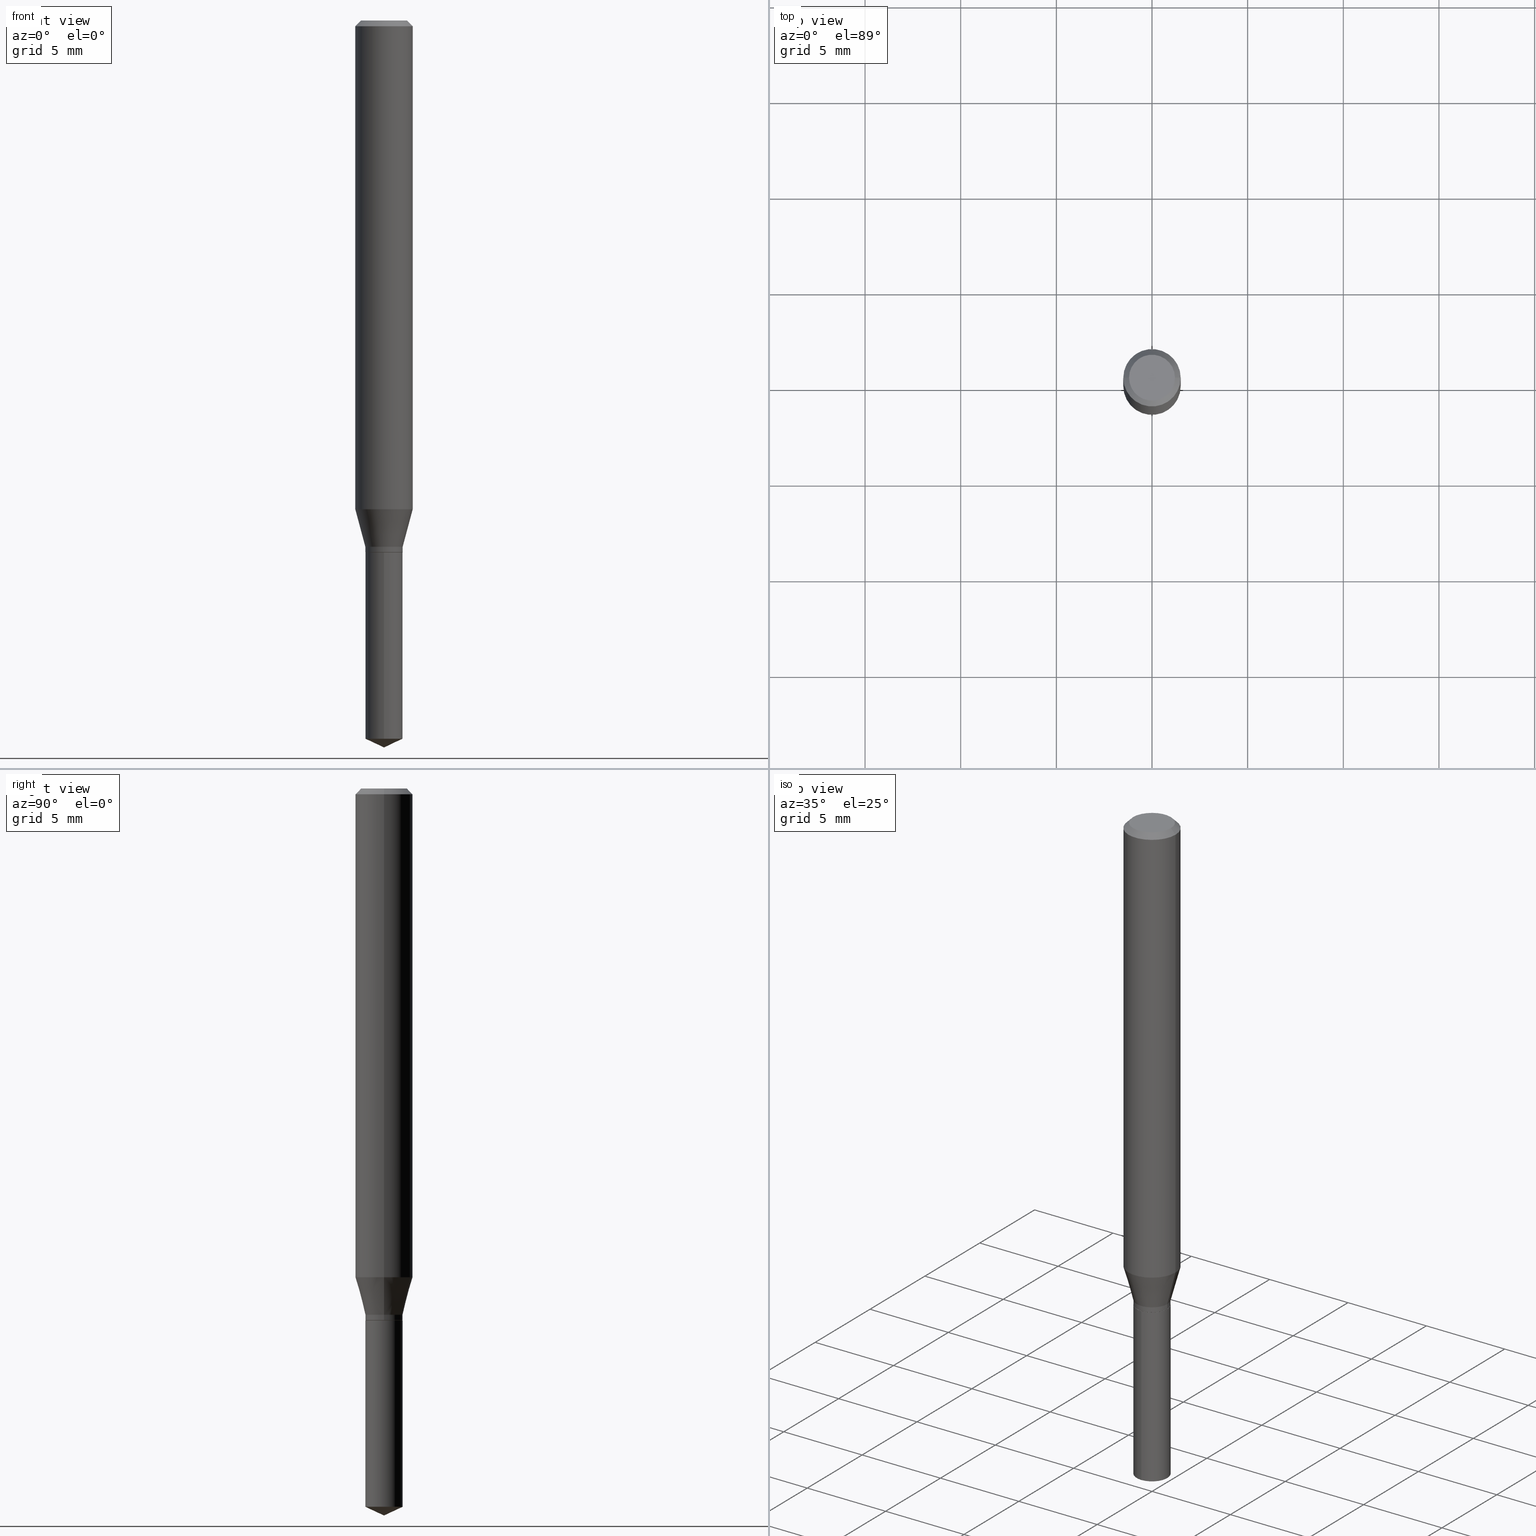
[diagram: canonical four-view strip — front | top / right | iso, engineering-drawing reading convention]
A machine part, canonical four-view strip (front | top / right | iso — engineering-drawing reading convention). The complete STEP part file that produces these views, byte-faithful:
ISO-10303-21;
HEADER;
FILE_DESCRIPTION (( 'STEP AP203' ),
    '1' );
FILE_NAME ('07938.STEP',
    '2024-04-24T06:42:45',
    ( '' ),
    ( '' ),
    'SwSTEP 2.0',
    'SolidWorks 2023',
    '' );
FILE_SCHEMA (( 'CONFIG_CONTROL_DESIGN' ));
ENDSEC;

DATA;
#1 = CARTESIAN_POINT ( 'NONE',  ( -0.05904999999999999832, -1.357140123951850551E-15, -0.01181000000000007044 ) ) ;
#2 = AXIS2_PLACEMENT_3D ( 'NONE', #396, #124, #313 ) ;
#3 = CARTESIAN_POINT ( 'NONE',  ( 0.04724000000000000421, -3.852183633974369345E-16, -3.380025165621689721E-19 ) ) ;
#4 = PRODUCT_DEFINITION_SHAPE ( 'NONE', 'NONE',  #31 ) ;
#5 = FACE_OUTER_BOUND ( 'NONE', #118, .T. ) ;
#6 = COORDINATED_UNIVERSAL_TIME_OFFSET ( 5, 0, .BEHIND. ) ;
#7 = CARTESIAN_POINT ( 'NONE',  ( 2.648442717098502966E-29, -3.781274289967126614E-15, -1.082999999999999963 ) ) ;
#8 = DIRECTION ( 'NONE',  ( -2.445458899330790108E-29, 3.491495526022433205E-15, 1.000000000000000000 ) ) ;
#9 = ADVANCED_FACE ( 'NONE', ( #312 ), #394, .T. ) ;
#10 = DIRECTION ( 'NONE',  ( -2.445468806185136597E-29, 3.491481338843145583E-15, 1.000000000000000000 ) ) ;
#11 = CARTESIAN_POINT ( 'NONE',  ( 8.265746106709734507E-48, -1.180129479067563789E-33, -3.380025165646692144E-19 ) ) ;
#12 = DIRECTION ( 'NONE',  ( 1.000000000000000000, -6.982962677686266711E-15, 0.000000000000000000 ) ) ;
#13 = APPROVAL ( #167, 'UNSPECIFIED' ) ;
#14 = DIRECTION ( 'NONE',  ( -2.445468806185136597E-29, 3.491481338843145583E-15, 1.000000000000000000 ) ) ;
#15 = APPLICATION_PROTOCOL_DEFINITION ( 'international standard', 'config_control_design', 1994, #27 ) ;
#16 = CARTESIAN_POINT ( 'NONE',  ( 0.03840000000000000357, -4.087826351517553684E-15, -1.093999999999999861 ) ) ;
#17 = ORIENTED_EDGE ( 'NONE', *, *, #346, .T. ) ;
#18 = FACE_OUTER_BOUND ( 'NONE', #222, .T. ) ;
#19 = CIRCLE ( 'NONE', #302, 0.05904999999999999832 ) ;
#20 = CARTESIAN_POINT ( 'NONE',  ( -0.03840000000000000357, -3.508425879435247821E-15, -1.082999999999999963 ) ) ;
#21 = DIRECTION ( 'NONE',  ( -1.000000000000000000, 6.982962677686266711E-15, 0.000000000000000000 ) ) ;
#22 = PERSON_AND_ORGANIZATION ( #65, #225 ) ;
#23 = DIRECTION ( 'NONE',  ( 1.000000000000000000, -6.982962677686265133E-15, 0.000000000000000000 ) ) ;
#24 = VERTEX_POINT ( 'NONE', #88 ) ;
#25 = CARTESIAN_POINT ( 'NONE',  ( -9.261924752013118283E-28, 1.322368428517963298E-13, 37.87397874015748300 ) ) ;
#26 = ORIENTED_EDGE ( 'NONE', *, *, #338, .F. ) ;
#27 = APPLICATION_CONTEXT ( 'configuration controlled 3d designs of mechanical parts and assemblies' ) ;
#28 = ADVANCED_FACE ( 'NONE', ( #90 ), #85, .T. ) ;
#29 = LOCAL_TIME ( 2, 42, 45.00000000000000000, #163 ) ;
#30 = ORIENTED_EDGE ( 'NONE', *, *, #318, .F. ) ;
#31 = PRODUCT_DEFINITION ( 'UNKNOWN', '', #461, #354 ) ;
#32 = ORIENTED_EDGE ( 'NONE', *, *, #338, .T. ) ;
#33 = VERTEX_POINT ( 'NONE', #1 ) ;
#34 = CONICAL_SURFACE ( 'NONE', #424, 0.03789999999999999619, 0.7853981633972775267 ) ;
#35 = EDGE_LOOP ( 'NONE', ( #223, #198, #62, #193 ) ) ;
#36 = CIRCLE ( 'NONE', #43, 0.03840000000000000357 ) ;
#37 = ORIENTED_EDGE ( 'NONE', *, *, #304, .F. ) ;
#38 = PERSON_AND_ORGANIZATION_ROLE ( 'classification_officer' ) ;
#39 = CARTESIAN_POINT ( 'NONE',  ( 0.000000000000000000, 0.000000000000000000, 0.000000000000000000 ) ) ;
#40 = DIRECTION ( 'NONE',  ( -2.445468806185136597E-29, 3.491481338843145583E-15, 1.000000000000000000 ) ) ;
#41 = FACE_OUTER_BOUND ( 'NONE', #301, .T. ) ;
#42 = AXIS2_PLACEMENT_3D ( 'NONE', #96, #463, #237 ) ;
#43 = AXIS2_PLACEMENT_3D ( 'NONE', #177, #286, #450 ) ;
#44 = CC_DESIGN_PERSON_AND_ORGANIZATION_ASSIGNMENT ( #197, #268, ( #461 ) ) ;
#45 = LINE ( 'NONE', #276, #349 ) ;
#46 = APPROVAL_ROLE ( '' ) ;
#47 = DIRECTION ( 'NONE',  ( 1.000000000000000000, -6.982962677686265133E-15, 0.000000000000000000 ) ) ;
#48 = UNCERTAINTY_MEASURE_WITH_UNIT (LENGTH_MEASURE( 1.000000000000000082E-05 ), #71, 'distance_accuracy_value', 'NONE');
#49 = DIRECTION ( 'NONE',  ( -0.7071067811865453523, 2.468850131082234184E-15, -0.7071067811865496822 ) ) ;
#50 = DIRECTION ( 'NONE',  ( 1.000000000000000000, -6.982962677686264344E-15, 0.000000000000000000 ) ) ;
#51 = ADVANCED_FACE ( 'NONE', ( #169 ), #309, .T. ) ;
#52 = DIRECTION ( 'NONE',  ( -2.438088387897960049E-29, 3.491481338843145188E-15, 1.000000000000000000 ) ) ;
#53 = CARTESIAN_POINT ( 'NONE',  ( 0.03840000000000000357, -4.049420056790279028E-15, -1.082999999999999963 ) ) ;
#54 = ADVANCED_FACE ( 'NONE', ( #351 ), #387, .T. ) ;
#55 = PERSON_AND_ORGANIZATION_ROLE ( 'creator' ) ;
#56 = AXIS2_PLACEMENT_3D ( 'NONE', #58, #324, #104 ) ;
#57 = SECURITY_CLASSIFICATION ( '', '', #161 ) ;
#58 = CARTESIAN_POINT ( 'NONE',  ( 2.676565608369632355E-29, -3.821426325363822773E-15, -1.094500000000000028 ) ) ;
#59 = ORIENTED_EDGE ( 'NONE', *, *, #240, .T. ) ;
#60 = CARTESIAN_POINT ( 'NONE',  ( 2.676565608369631794E-29, -3.821426325363822773E-15, -1.094499999999999806 ) ) ;
#61 = CARTESIAN_POINT ( 'NONE',  ( -0.03840000000000000357, -3.527629026798885149E-15, -1.093999999999999861 ) ) ;
#62 = ORIENTED_EDGE ( 'NONE', *, *, #243, .T. ) ;
#63 = DIRECTION ( 'NONE',  ( -6.982962677686265133E-15, -1.000000000000000000, 3.557093741750342424E-15 ) ) ;
#64 = CARTESIAN_POINT ( 'NONE',  ( 2.728484105319146858E-16, 0.03839999999999618718, -1.094500000000000028 ) ) ;
#65 = PERSON ( 'UNSPECIFIED', 'UNSPECIFIED', 'UNSPECIFIED', ('UNSPECIFIED'), ('UNSPECIFIED'), ('UNSPECIFIED') ) ;
#66 = ORIENTED_EDGE ( 'NONE', *, *, #304, .T. ) ;
#67 = CIRCLE ( 'NONE', #278, 0.05904999999999999832 ) ;
#68 = VECTOR ( 'NONE', #275, 39.37007874015748143 ) ;
#69 = DIRECTION ( 'NONE',  ( 2.438088387897960049E-29, -3.491481338843145188E-15, -1.000000000000000000 ) ) ;
#70 = ORIENTED_EDGE ( 'NONE', *, *, #383, .F. ) ;
#71 =( CONVERSION_BASED_UNIT ( 'INCH', #409 ) LENGTH_UNIT ( ) NAMED_UNIT ( #371 ) );
#72 = ADVANCED_FACE ( 'NONE', ( #239 ), #468, .T. ) ;
#73 = ADVANCED_FACE ( 'NONE', ( #5 ), #358, .T. ) ;
#74 = CC_DESIGN_PERSON_AND_ORGANIZATION_ASSIGNMENT ( #306, #38, ( #57 ) ) ;
#75 = DATE_AND_TIME ( #111, #341 ) ;
#76 = CONICAL_SURFACE ( 'NONE', #234, 84.42940631927434936, 1.134464013796316006 ) ;
#77 = VERTEX_POINT ( 'NONE', #136 ) ;
#78 = ORIENTED_EDGE ( 'NONE', *, *, #471, .T. ) ;
#79 = ADVANCED_FACE ( 'NONE', ( #41 ), #416, .T. ) ;
#80 = ORIENTED_EDGE ( 'NONE', *, *, #164, .F. ) ;
#81 = CALENDAR_DATE ( 2024, 24, 4 ) ;
#82 = PERSON_AND_ORGANIZATION_ROLE ( 'design_supplier' ) ;
#83 = AXIS2_PLACEMENT_3D ( 'NONE', #292, #14, #23 ) ;
#84 = ORIENTED_EDGE ( 'NONE', *, *, #252, .F. ) ;
#85 = CYLINDRICAL_SURFACE ( 'NONE', #208, 0.03840000000000000357 ) ;
#86 = EDGE_CURVE ( 'NONE', #333, #339, #270, .T. ) ;
#87 = DATE_TIME_ROLE ( 'classification_date' ) ;
#88 = CARTESIAN_POINT ( 'NONE',  ( 0.05905000000000011628, -3.924540770342018857E-15, -1.005933150823702382 ) ) ;
#89 = FACE_OUTER_BOUND ( 'NONE', #440, .T. ) ;
#90 = FACE_OUTER_BOUND ( 'NONE', #481, .T. ) ;
#91 = AXIS2_PLACEMENT_3D ( 'NONE', #165, #467, #93 ) ;
#92 = CARTESIAN_POINT ( 'NONE',  ( 2.888098660104663766E-31, -4.123439461173779647E-17, -0.01181000000000007044 ) ) ;
#93 = DIRECTION ( 'NONE',  ( -6.982962677686266711E-15, -1.000000000000000000, 3.520397390770453475E-15 ) ) ;
#94 = CARTESIAN_POINT ( 'NONE',  ( -2.681457668231258890E-16, -0.03840000000000381997, -1.094499999999999806 ) ) ;
#95 = CC_DESIGN_PERSON_AND_ORGANIZATION_ASSIGNMENT ( #321, #445, ( #230 ) ) ;
#96 = CARTESIAN_POINT ( 'NONE',  ( 2.888098660104663766E-31, -4.123439461173779647E-17, -0.01181000000000007044 ) ) ;
#97 = LINE ( 'NONE', #253, #106 ) ;
#98 = ORIENTED_EDGE ( 'NONE', *, *, #372, .T. ) ;
#99 = AXIS2_PLACEMENT_3D ( 'NONE', #469, #200, #433 ) ;
#100 = LINE ( 'NONE', #331, #456 ) ;
#101 = DIRECTION ( 'NONE',  ( -2.445468806185136597E-29, 3.491481338843145583E-15, 1.000000000000000000 ) ) ;
#102 = ORIENTED_EDGE ( 'NONE', *, *, #444, .T. ) ;
#103 = DIRECTION ( 'NONE',  ( 1.000000000000000000, -6.982962677686266711E-15, 0.000000000000000000 ) ) ;
#104 = DIRECTION ( 'NONE',  ( 1.000000000000000000, -6.982962677686265133E-15, 0.000000000000000000 ) ) ;
#105 = LINE ( 'NONE', #473, #189 ) ;
#106 = VECTOR ( 'NONE', #246, 39.37007874015748143 ) ;
#107 = VECTOR ( 'NONE', #251, 39.37007874015748143 ) ;
#108 = EDGE_CURVE ( 'NONE', #265, #221, #355, .T. ) ;
#109 = CALENDAR_DATE ( 2024, 24, 4 ) ;
#110 = CARTESIAN_POINT ( 'NONE',  ( 2.459978141446892264E-29, -3.512196824224644331E-15, -1.005933150823702382 ) ) ;
#111 = CALENDAR_DATE ( 2024, 24, 4 ) ;
#112 = ORIENTED_EDGE ( 'NONE', *, *, #346, .F. ) ;
#113 = EDGE_LOOP ( 'NONE', ( #482, #184, #415, #37 ) ) ;
#114 = AXIS2_PLACEMENT_3D ( 'NONE', #391, #8, #122 ) ;
#115 = APPROVAL_PERSON_ORGANIZATION ( #22, #441, #376 ) ;
#116 = ORIENTED_EDGE ( 'NONE', *, *, #185, .F. ) ;
#117 = COORDINATED_UNIVERSAL_TIME_OFFSET ( 5, 0, .BEHIND. ) ;
#118 = EDGE_LOOP ( 'NONE', ( #112, #476, #266, #98 ) ) ;
#119 = EDGE_LOOP ( 'NONE', ( #205, #207, #317, #154 ) ) ;
#120 = CLOSED_SHELL ( 'NONE', ( #170, #489, #72, #28, #385 ) ) ;
#121 = CONICAL_SURFACE ( 'NONE', #83, 0.03789999999999999619, 0.7853981633972775267 ) ;
#122 = DIRECTION ( 'NONE',  ( -6.982962677686265133E-15, -1.000000000000000000, 3.557093741750342424E-15 ) ) ;
#123 = CONICAL_SURFACE ( 'NONE', #158, 0.05904999999999999832, 0.7853981633974452814 ) ;
#124 = DIRECTION ( 'NONE',  ( -2.445468806185136597E-29, 3.491481338843145583E-15, 1.000000000000000000 ) ) ;
#125 = DATE_AND_TIME ( #308, #29 ) ;
#126 = DIRECTION ( 'NONE',  ( -2.445468806185136597E-29, 3.491481338843145583E-15, 1.000000000000000000 ) ) ;
#127 = CC_DESIGN_PERSON_AND_ORGANIZATION_ASSIGNMENT ( #421, #82, ( #461 ) ) ;
#128 = LINE ( 'NONE', #168, #68 ) ;
#129 = ADVANCED_FACE ( 'NONE', ( #490 ), #34, .T. ) ;
#130 = CARTESIAN_POINT ( 'NONE',  ( -0.03789999999999999619, -3.552130628510744879E-15, -1.094500000000000028 ) ) ;
#131 = CYLINDRICAL_SURFACE ( 'NONE', #114, 0.03840000000000000357 ) ;
#132 = CIRCLE ( 'NONE', #388, 0.04724000000000000421 ) ;
#133 = LOCAL_TIME ( 2, 42, 45.00000000000000000, #117 ) ;
#134 = EDGE_CURVE ( 'NONE', #156, #24, #465, .T. ) ;
#135 = DIRECTION ( 'NONE',  ( 1.000000000000000000, -6.982962677686266711E-15, 0.000000000000000000 ) ) ;
#136 = CARTESIAN_POINT ( 'NONE',  ( 3.658651059288794515E-29, -5.223626456482161457E-15, -1.496099999999999985 ) ) ;
#137 = DIRECTION ( 'NONE',  ( 0.7071067811865453523, -7.319954787623248157E-15, -0.7071067811865496822 ) ) ;
#138 = DIRECTION ( 'NONE',  ( -0.2588190451025211836, 5.211531920934547886E-15, 0.9659258262890679791 ) ) ;
#139 = DIRECTION ( 'NONE',  ( 0.000000000000000000, 0.000000000000000000, 1.000000000000000000 ) ) ;
#140 = DIRECTION ( 'NONE',  ( 1.000000000000000000, -6.982962677686266711E-15, 4.876185090822587894E-29 ) ) ;
#141 = VECTOR ( 'NONE', #402, 39.37007874015748143 ) ;
#142 = DIRECTION ( 'NONE',  ( -2.445458899330790108E-29, 3.491495526022433205E-15, 1.000000000000000000 ) ) ;
#143 = DIRECTION ( 'NONE',  ( -2.445468806185136877E-29, 3.491481338843145188E-15, 1.000000000000000000 ) ) ;
#144 = ORIENTED_EDGE ( 'NONE', *, *, #448, .F. ) ;
#145 =( LENGTH_UNIT ( ) NAMED_UNIT ( * ) SI_UNIT ( $, .METRE. ) );
#146 = DATE_TIME_ROLE ( 'creation_date' ) ;
#147 = DIRECTION ( 'NONE',  ( -6.982962677686265133E-15, -1.000000000000000000, 3.557093741750342424E-15 ) ) ;
#148 = EDGE_LOOP ( 'NONE', ( #300, #484, #153, #84 ) ) ;
#149 = EDGE_CURVE ( 'NONE', #284, #33, #128, .T. ) ;
#150 = PRODUCT_RELATED_PRODUCT_CATEGORY ( 'detail', '', ( #230 ) ) ;
#151 = VECTOR ( 'NONE', #143, 39.37007874015748143 ) ;
#152 =( GEOMETRIC_REPRESENTATION_CONTEXT ( 3 ) GLOBAL_UNCERTAINTY_ASSIGNED_CONTEXT ( ( #48 ) ) GLOBAL_UNIT_ASSIGNED_CONTEXT ( ( #71, #293, #411 ) ) REPRESENTATION_CONTEXT ( 'NONE', 'WORKASPACE' ) );
#153 = ORIENTED_EDGE ( 'NONE', *, *, #356, .F. ) ;
#154 = ORIENTED_EDGE ( 'NONE', *, *, #134, .F. ) ;
#155 = PERSON_AND_ORGANIZATION ( #65, #225 ) ;
#156 = VERTEX_POINT ( 'NONE', #53 ) ;
#157 = CIRCLE ( 'NONE', #179, 0.03840000000000000357 ) ;
#158 = AXIS2_PLACEMENT_3D ( 'NONE', #398, #258, #21 ) ;
#159 = EDGE_LOOP ( 'NONE', ( #80, #451, #400 ) ) ;
#160 = ORIENTED_EDGE ( 'NONE', *, *, #108, .T. ) ;
#161 = SECURITY_CLASSIFICATION_LEVEL ( 'unclassified' ) ;
#162 = DIRECTION ( 'NONE',  ( -2.445468806185136597E-29, 3.491481338843145583E-15, 1.000000000000000000 ) ) ;
#163 = COORDINATED_UNIVERSAL_TIME_OFFSET ( 5, 0, .BEHIND. ) ;
#164 = EDGE_CURVE ( 'NONE', #77, #265, #429, .T. ) ;
#165 = CARTESIAN_POINT ( 'NONE',  ( -9.261924752013118283E-28, 1.322368428517963298E-13, 37.87397874015748300 ) ) ;
#166 = CARTESIAN_POINT ( 'NONE',  ( 0.03789999999999999619, -4.086080610848132181E-15, -1.094500000000000028 ) ) ;
#167 = APPROVAL_STATUS ( 'not_yet_approved' ) ;
#168 = CARTESIAN_POINT ( 'NONE',  ( -0.05905000000000006077, 4.195754854663395916E-16, -2.904631170795524694E-30 ) ) ;
#169 = FACE_OUTER_BOUND ( 'NONE', #113, .T. ) ;
#170 = ADVANCED_FACE ( 'NONE', ( #314 ), #131, .T. ) ;
#171 = DIRECTION ( 'NONE',  ( -2.445458899330790108E-29, 3.491495526022433205E-15, 1.000000000000000000 ) ) ;
#172 = AXIS2_PLACEMENT_3D ( 'NONE', #274, #357, #310 ) ;
#173 = AXIS2_PLACEMENT_3D ( 'NONE', #392, #52, #206 ) ;
#174 = LINE ( 'NONE', #210, #151 ) ;
#175 = DATE_AND_TIME ( #236, #264 ) ;
#176 = DIRECTION ( 'NONE',  ( -2.445468806185136597E-29, 3.491481338843145583E-15, 1.000000000000000000 ) ) ;
#177 = CARTESIAN_POINT ( 'NONE',  ( 3.614872991782365897E-29, -5.161091462290022333E-15, -1.478193785926848136 ) ) ;
#178 = FACE_OUTER_BOUND ( 'NONE', #326, .T. ) ;
#179 = AXIS2_PLACEMENT_3D ( 'NONE', #329, #478, #147 ) ;
#180 = AXIS2_PLACEMENT_3D ( 'NONE', #60, #142, #63 ) ;
#181 = DIRECTION ( 'NONE',  ( -2.445468806185136597E-29, 3.491481338843145583E-15, 1.000000000000000000 ) ) ;
#182 = LINE ( 'NONE', #366, #107 ) ;
#183 = APPROVAL_STATUS ( 'not_yet_approved' ) ;
#184 = ORIENTED_EDGE ( 'NONE', *, *, #86, .T. ) ;
#185 = EDGE_CURVE ( 'NONE', #382, #342, #277, .T. ) ;
#186 = DIRECTION ( 'NONE',  ( -2.445458899330790108E-29, 3.491495526022433205E-15, 1.000000000000000000 ) ) ;
#187 = ORIENTED_EDGE ( 'NONE', *, *, #422, .F. ) ;
#188 = CIRCLE ( 'NONE', #244, 0.03840000000000000357 ) ;
#189 = VECTOR ( 'NONE', #323, 39.37007874015748143 ) ;
#190 = EDGE_LOOP ( 'NONE', ( #458, #337, #374, #247 ) ) ;
#191 = VERTEX_POINT ( 'NONE', #287 ) ;
#192 = CC_DESIGN_PERSON_AND_ORGANIZATION_ASSIGNMENT ( #255, #55, ( #31 ) ) ;
#193 = ORIENTED_EDGE ( 'NONE', *, *, #372, .F. ) ;
#194 = CIRCLE ( 'NONE', #180, 0.03840000000000000357 ) ;
#195 = ORIENTED_EDGE ( 'NONE', *, *, #353, .F. ) ;
#196 = ADVANCED_FACE ( 'NONE', ( #438 ), #121, .T. ) ;
#197 = PERSON_AND_ORGANIZATION ( #65, #225 ) ;
#198 = ORIENTED_EDGE ( 'NONE', *, *, #448, .T. ) ;
#199 = CC_DESIGN_DATE_AND_TIME_ASSIGNMENT ( #125, #87, ( #57 ) ) ;
#200 = DIRECTION ( 'NONE',  ( -2.445468806185136597E-29, 3.491481338843145583E-15, 1.000000000000000000 ) ) ;
#201 = DIRECTION ( 'NONE',  ( 1.000000000000000000, -6.982962677686264344E-15, 0.000000000000000000 ) ) ;
#202 = ADVANCED_BREP_SHAPE_REPRESENTATION ( '07938', ( #361, #362, #395 ), #152 ) ;
#203 = CC_DESIGN_SECURITY_CLASSIFICATION ( #57, ( #461 ) ) ;
#204 = DIRECTION ( 'NONE',  ( 6.439704144417030353E-15, 0.9063077870366521571, 0.4226182617406946673 ) ) ;
#205 = ORIENTED_EDGE ( 'NONE', *, *, #356, .T. ) ;
#206 = DIRECTION ( 'NONE',  ( 1.000000000000000000, -6.982962677686265922E-15, 4.876176775795935793E-29 ) ) ;
#207 = ORIENTED_EDGE ( 'NONE', *, *, #318, .T. ) ;
#208 = AXIS2_PLACEMENT_3D ( 'NONE', #459, #171, #231 ) ;
#209 = APPROVAL_PERSON_ORGANIZATION ( #155, #13, #46 ) ;
#210 = CARTESIAN_POINT ( 'NONE',  ( 0.05905000000000006077, -4.123439461173744764E-16, 2.879382386107503023E-30 ) ) ;
#211 = DIRECTION ( 'NONE',  ( -2.445458899330790108E-29, 3.491495526022433205E-15, 1.000000000000000000 ) ) ;
#212 = ORIENTED_EDGE ( 'NONE', *, *, #422, .T. ) ;
#213 = CARTESIAN_POINT ( 'NONE',  ( 3.614872991782365897E-29, -5.161091462290022333E-15, -1.478193785926848136 ) ) ;
#214 = CIRCLE ( 'NONE', #486, 0.03840000000000000357 ) ;
#215 = APPROVAL_PERSON_ORGANIZATION ( #299, #410, #413 ) ;
#216 = CARTESIAN_POINT ( 'NONE',  ( 0.000000000000000000, 0.000000000000000000, 0.000000000000000000 ) ) ;
#217 = FACE_OUTER_BOUND ( 'NONE', #148, .T. ) ;
#218 = CARTESIAN_POINT ( 'NONE',  ( -0.03840000000000000357, -3.527629026798885149E-15, -1.082999999999999963 ) ) ;
#219 = ORIENTED_EDGE ( 'NONE', *, *, #134, .T. ) ;
#220 = VECTOR ( 'NONE', #138, 39.37007874015748854 ) ;
#221 = VERTEX_POINT ( 'NONE', #64 ) ;
#222 = EDGE_LOOP ( 'NONE', ( #453, #330, #187 ) ) ;
#223 = ORIENTED_EDGE ( 'NONE', *, *, #149, .F. ) ;
#224 = AXIS2_PLACEMENT_3D ( 'NONE', #431, #272, #393 ) ;
#225 = ORGANIZATION ( 'UNSPECIFIED', 'UNSPECIFIED', '' ) ;
#226 = EDGE_CURVE ( 'NONE', #336, #379, #132, .T. ) ;
#227 = ORIENTED_EDGE ( 'NONE', *, *, #185, .T. ) ;
#228 = CARTESIAN_POINT ( 'NONE',  ( 0.03840000000000000357, -4.049420056790279028E-15, -1.082999999999999963 ) ) ;
#229 = DIRECTION ( 'NONE',  ( -2.445468806185136597E-29, 3.491481338843145583E-15, 1.000000000000000000 ) ) ;
#230 = PRODUCT ( '07938', '07938', '', ( #328 ) ) ;
#231 = DIRECTION ( 'NONE',  ( -6.982962677686265133E-15, -1.000000000000000000, 3.557093741750342424E-15 ) ) ;
#232 = DIRECTION ( 'NONE',  ( 2.445458899330789267E-29, -3.491495526022433599E-15, -1.000000000000000000 ) ) ;
#233 = DIRECTION ( 'NONE',  ( -2.445468806185136597E-29, 3.491481338843145583E-15, 1.000000000000000000 ) ) ;
#234 = AXIS2_PLACEMENT_3D ( 'NONE', #25, #186, #332 ) ;
#235 = CARTESIAN_POINT ( 'NONE',  ( 2.648442717098502966E-29, -3.781274289967126614E-15, -1.082999999999999963 ) ) ;
#236 = CALENDAR_DATE ( 2024, 24, 4 ) ;
#237 = DIRECTION ( 'NONE',  ( -1.000000000000000000, 6.982962677686266711E-15, 0.000000000000000000 ) ) ;
#238 = PLANE ( 'NONE',  #173 ) ;
#239 = FACE_OUTER_BOUND ( 'NONE', #159, .T. ) ;
#240 = EDGE_CURVE ( 'NONE', #379, #336, #316, .T. ) ;
#241 = LINE ( 'NONE', #315, #455 ) ;
#242 = CARTESIAN_POINT ( 'NONE',  ( 2.648442717098502966E-29, -3.781274289967126614E-15, -1.082999999999999963 ) ) ;
#243 = EDGE_CURVE ( 'NONE', #24, #191, #174, .T. ) ;
#244 = AXIS2_PLACEMENT_3D ( 'NONE', #213, #211, #365 ) ;
#245 = ORIENTED_EDGE ( 'NONE', *, *, #243, .F. ) ;
#246 = DIRECTION ( 'NONE',  ( -2.445468806185136877E-29, 3.491481338843145188E-15, 1.000000000000000000 ) ) ;
#247 = ORIENTED_EDGE ( 'NONE', *, *, #86, .F. ) ;
#248 = APPLICATION_CONTEXT ( 'configuration controlled 3d designs of mechanical parts and assemblies' ) ;
#249 = CARTESIAN_POINT ( 'NONE',  ( -2.681457668231258890E-16, -0.03840000000000381997, -1.094499999999999806 ) ) ;
#250 = DIRECTION ( 'NONE',  ( 1.000000000000000000, -6.982962677686266711E-15, 4.876185090822587894E-29 ) ) ;
#251 = DIRECTION ( 'NONE',  ( 0.7071067811864267805, -2.468850131080992517E-15, 0.7071067811866682540 ) ) ;
#252 = EDGE_CURVE ( 'NONE', #339, #156, #97, .T. ) ;
#253 = CARTESIAN_POINT ( 'NONE',  ( 0.03840000000000000357, -2.681457668231526610E-16, 1.872451881905639538E-30 ) ) ;
#254 = AXIS2_PLACEMENT_3D ( 'NONE', #7, #233, #428 ) ;
#255 = PERSON_AND_ORGANIZATION ( #65, #225 ) ;
#256 = AXIS2_PLACEMENT_3D ( 'NONE', #464, #232, #319 ) ;
#257 = DIRECTION ( 'NONE',  ( -2.445468806185136877E-29, 3.491481338843145188E-15, 1.000000000000000000 ) ) ;
#258 = DIRECTION ( 'NONE',  ( 2.445468806185136597E-29, -3.491481338843145583E-15, -1.000000000000000000 ) ) ;
#259 = APPROVAL_DATE_TIME ( #175, #13 ) ;
#260 = APPROVAL_DATE_TIME ( #262, #441 ) ;
#261 = ORIENTED_EDGE ( 'NONE', *, *, #108, .F. ) ;
#262 = DATE_AND_TIME ( #109, #297 ) ;
#263 = ORIENTED_EDGE ( 'NONE', *, *, #479, .T. ) ;
#264 = LOCAL_TIME ( 2, 42, 45.00000000000000000, #6 ) ;
#265 = VERTEX_POINT ( 'NONE', #474 ) ;
#266 = ORIENTED_EDGE ( 'NONE', *, *, #401, .T. ) ;
#267 = ADVANCED_FACE ( 'NONE', ( #178 ), #407, .F. ) ;
#268 = PERSON_AND_ORGANIZATION_ROLE ( 'creator' ) ;
#269 = ORIENTED_EDGE ( 'NONE', *, *, #427, .F. ) ;
#270 = CIRCLE ( 'NONE', #99, 0.03840000000000000357 ) ;
#271 = CIRCLE ( 'NONE', #417, 0.05905000000000011628 ) ;
#272 = DIRECTION ( 'NONE',  ( -2.445468806185136597E-29, 3.491481338843145583E-15, 1.000000000000000000 ) ) ;
#273 = DIRECTION ( 'NONE',  ( 0.2588190451025211836, 1.565188264969622559E-15, 0.9659258262890679791 ) ) ;
#274 = CARTESIAN_POINT ( 'NONE',  ( 2.675342873966538993E-29, -3.819680584694400481E-15, -1.093999999999999861 ) ) ;
#275 = DIRECTION ( 'NONE',  ( -2.445468806185136877E-29, 3.491481338843145188E-15, 1.000000000000000000 ) ) ;
#276 = CARTESIAN_POINT ( 'NONE',  ( -0.05904999999999999832, 3.711095515056362547E-16, -0.01181000000000007044 ) ) ;
#277 = CIRCLE ( 'NONE', #56, 0.03789999999999999619 ) ;
#278 = AXIS2_PLACEMENT_3D ( 'NONE', #348, #10, #135 ) ;
#279 = DIRECTION ( 'NONE',  ( -2.445458899330790108E-29, 3.491495526022433599E-15, 1.000000000000000000 ) ) ;
#280 = PLANE ( 'NONE',  #256 ) ;
#281 = DIRECTION ( 'NONE',  ( 1.000000000000000000, -6.982962677686266711E-15, 4.876176775795935793E-29 ) ) ;
#282 = CC_DESIGN_DATE_AND_TIME_ASSIGNMENT ( #75, #146, ( #31 ) ) ;
#283 = CARTESIAN_POINT ( 'NONE',  ( -0.04724000000000000421, 3.504923541997677355E-16, -3.380025165670481712E-19 ) ) ;
#284 = VERTEX_POINT ( 'NONE', #475 ) ;
#285 = COORDINATED_UNIVERSAL_TIME_OFFSET ( 5, 0, .BEHIND. ) ;
#286 = DIRECTION ( 'NONE',  ( -2.445458899330790108E-29, 3.491495526022433205E-15, 1.000000000000000000 ) ) ;
#287 = CARTESIAN_POINT ( 'NONE',  ( 0.05904999999999999832, -4.535783407291118600E-16, -0.01181000000000007044 ) ) ;
#288 = VECTOR ( 'NONE', #273, 39.37007874015748854 ) ;
#289 = DIRECTION ( 'NONE',  ( 1.000000000000000000, -6.982962677686264344E-15, 0.000000000000000000 ) ) ;
#290 = VERTEX_POINT ( 'NONE', #399 ) ;
#291 = APPROVAL_DATE_TIME ( #327, #410 ) ;
#292 = CARTESIAN_POINT ( 'NONE',  ( 2.676565608369632355E-29, -3.821426325363822773E-15, -1.094500000000000028 ) ) ;
#293 =( NAMED_UNIT ( * ) PLANE_ANGLE_UNIT ( ) SI_UNIT ( $, .RADIAN. ) );
#294 = SHAPE_DEFINITION_REPRESENTATION ( #4, #202 ) ;
#295 = COORDINATED_UNIVERSAL_TIME_OFFSET ( 5, 0, .BEHIND. ) ;
#296 = VECTOR ( 'NONE', #279, 39.37007874015748143 ) ;
#297 = LOCAL_TIME ( 2, 42, 45.00000000000000000, #295 ) ;
#298 = ORIENTED_EDGE ( 'NONE', *, *, #397, .T. ) ;
#299 = PERSON_AND_ORGANIZATION ( #65, #225 ) ;
#300 = ORIENTED_EDGE ( 'NONE', *, *, #383, .T. ) ;
#301 = EDGE_LOOP ( 'NONE', ( #30, #66, #219, #144 ) ) ;
#302 = AXIS2_PLACEMENT_3D ( 'NONE', #92, #229, #12 ) ;
#303 = ORIENTED_EDGE ( 'NONE', *, *, #350, .T. ) ;
#304 = EDGE_CURVE ( 'NONE', #443, #156, #437, .T. ) ;
#305 = ORIENTED_EDGE ( 'NONE', *, *, #226, .T. ) ;
#306 = PERSON_AND_ORGANIZATION ( #65, #225 ) ;
#307 = CARTESIAN_POINT ( 'NONE',  ( 3.658672935554494692E-29, -5.223595400746700193E-15, -1.496099999999999985 ) ) ;
#308 = CALENDAR_DATE ( 2024, 24, 4 ) ;
#309 = CYLINDRICAL_SURFACE ( 'NONE', #224, 0.03840000000000000357 ) ;
#310 = DIRECTION ( 'NONE',  ( 1.000000000000000000, -6.982962677686264344E-15, 0.000000000000000000 ) ) ;
#311 = ADVANCED_FACE ( 'NONE', ( #367 ), #322, .T. ) ;
#312 = FACE_OUTER_BOUND ( 'NONE', #119, .T. ) ;
#313 = DIRECTION ( 'NONE',  ( 1.000000000000000000, -6.982962677686266711E-15, 4.876176775795935793E-29 ) ) ;
#314 = FACE_OUTER_BOUND ( 'NONE', #488, .T. ) ;
#315 = CARTESIAN_POINT ( 'NONE',  ( 0.05904999999999999832, -4.463468013801466955E-16, -0.01181000000000007044 ) ) ;
#316 = CIRCLE ( 'NONE', #375, 0.04724000000000000421 ) ;
#317 = ORIENTED_EDGE ( 'NONE', *, *, #471, .F. ) ;
#318 = EDGE_CURVE ( 'NONE', #443, #284, #442, .T. ) ;
#319 = DIRECTION ( 'NONE',  ( 6.982962677686265922E-15, 1.000000000000000000, -3.491495526022433599E-15 ) ) ;
#320 = DIRECTION ( 'NONE',  ( -1.000000000000000000, 6.982962677686265922E-15, -4.876176775795935793E-29 ) ) ;
#321 = PERSON_AND_ORGANIZATION ( #65, #225 ) ;
#322 = CYLINDRICAL_SURFACE ( 'NONE', #460, 0.05905000000000006077 ) ;
#323 = DIRECTION ( 'NONE',  ( -6.328713451373374901E-15, -0.9063077870366492705, 0.4226182617407009956 ) ) ;
#324 = DIRECTION ( 'NONE',  ( -2.445468806185136597E-29, 3.491481338843145583E-15, 1.000000000000000000 ) ) ;
#325 = AXIS2_PLACEMENT_3D ( 'NONE', #360, #69, #320 ) ;
#326 = EDGE_LOOP ( 'NONE', ( #305, #59 ) ) ;
#327 = DATE_AND_TIME ( #81, #133 ) ;
#328 = MECHANICAL_CONTEXT ( 'NONE', #27, 'mechanical' ) ;
#329 = CARTESIAN_POINT ( 'NONE',  ( 2.676565608369631794E-29, -3.821426325363822773E-15, -1.094499999999999806 ) ) ;
#330 = ORIENTED_EDGE ( 'NONE', *, *, #164, .T. ) ;
#331 = CARTESIAN_POINT ( 'NONE',  ( -0.03840000000000000357, 2.728484105318784968E-16, -1.888871074657883770E-30 ) ) ;
#332 = DIRECTION ( 'NONE',  ( -6.982962677686266711E-15, -1.000000000000000000, 3.520397390770453475E-15 ) ) ;
#333 = VERTEX_POINT ( 'NONE', #61 ) ;
#334 = VECTOR ( 'NONE', #470, 39.37007874015748143 ) ;
#335 = EDGE_CURVE ( 'NONE', #265, #290, #188, .T. ) ;
#336 = VERTEX_POINT ( 'NONE', #283 ) ;
#337 = ORIENTED_EDGE ( 'NONE', *, *, #353, .T. ) ;
#338 = EDGE_CURVE ( 'NONE', #221, #404, #157, .T. ) ;
#339 = VERTEX_POINT ( 'NONE', #16 ) ;
#340 = VECTOR ( 'NONE', #204, 39.37007874015748854 ) ;
#341 = LOCAL_TIME ( 2, 42, 45.00000000000000000, #285 ) ;
#342 = VERTEX_POINT ( 'NONE', #446 ) ;
#343 = ORIENTED_EDGE ( 'NONE', *, *, #350, .F. ) ;
#344 = ADVANCED_FACE ( 'NONE', ( #217 ), #369, .T. ) ;
#345 = CARTESIAN_POINT ( 'NONE',  ( 2.648442717098502966E-29, -3.781274289967126614E-15, -1.082999999999999963 ) ) ;
#346 = EDGE_CURVE ( 'NONE', #379, #191, #241, .T. ) ;
#347 = AXIS2_PLACEMENT_3D ( 'NONE', #39, #126, #281 ) ;
#348 = CARTESIAN_POINT ( 'NONE',  ( 2.888098660104663766E-31, -4.123439461173779647E-17, -0.01181000000000007044 ) ) ;
#349 = VECTOR ( 'NONE', #49, 39.37007874015748143 ) ;
#350 = EDGE_CURVE ( 'NONE', #191, #33, #19, .T. ) ;
#351 = FACE_OUTER_BOUND ( 'NONE', #35, .T. ) ;
#352 = DIRECTION ( 'NONE',  ( -2.445468806185136597E-29, 3.491481338843145583E-15, 1.000000000000000000 ) ) ;
#353 = EDGE_CURVE ( 'NONE', #342, #382, #368, .T. ) ;
#354 = DESIGN_CONTEXT ( 'detailed design', #248, 'design' ) ;
#355 = LINE ( 'NONE', #384, #296 ) ;
#356 = EDGE_CURVE ( 'NONE', #156, #443, #214, .T. ) ;
#357 = DIRECTION ( 'NONE',  ( -2.445468806185136597E-29, 3.491481338843145583E-15, 1.000000000000000000 ) ) ;
#358 = CONICAL_SURFACE ( 'NONE', #42, 0.05904999999999999832, 0.7853981633974452814 ) ;
#359 = CC_DESIGN_APPROVAL ( #441, ( #461 ) ) ;
#360 = CARTESIAN_POINT ( 'NONE',  ( 4.132873053354867254E-48, -5.900647395337818946E-34, -1.690012582823346072E-19 ) ) ;
#361 = MANIFOLD_SOLID_BREP ( 'Body-Move/Copy2[1]', #120 ) ;
#362 = MANIFOLD_SOLID_BREP ( 'Body-Move/Copy2[2]', #480 ) ;
#363 = DIRECTION ( 'NONE',  ( -2.445468806185136597E-29, 3.491481338843145583E-15, 1.000000000000000000 ) ) ;
#364 = DIRECTION ( 'NONE',  ( 1.000000000000000000, 0.000000000000000000, 0.000000000000000000 ) ) ;
#365 = DIRECTION ( 'NONE',  ( -6.982962677686266711E-15, -1.000000000000000000, 0.000000000000000000 ) ) ;
#366 = CARTESIAN_POINT ( 'NONE',  ( 0.03789999999999999619, -4.086080610848132181E-15, -1.094500000000000028 ) ) ;
#367 = FACE_OUTER_BOUND ( 'NONE', #423, .T. ) ;
#368 = CIRCLE ( 'NONE', #430, 0.03789999999999999619 ) ;
#369 = CYLINDRICAL_SURFACE ( 'NONE', #2, 0.03840000000000000357 ) ;
#370 = DIRECTION ( 'NONE',  ( -2.445468806185136597E-29, 3.491481338843145583E-15, 1.000000000000000000 ) ) ;
#371 = DIMENSIONAL_EXPONENTS ( 1.000000000000000000, 0.000000000000000000, 0.000000000000000000, 0.000000000000000000, 0.000000000000000000, 0.000000000000000000, 0.000000000000000000 ) ;
#372 = EDGE_CURVE ( 'NONE', #33, #191, #67, .T. ) ;
#373 = DIRECTION ( 'NONE',  ( -2.445468806185136597E-29, 3.491481338843145583E-15, 1.000000000000000000 ) ) ;
#374 = ORIENTED_EDGE ( 'NONE', *, *, #427, .T. ) ;
#375 = AXIS2_PLACEMENT_3D ( 'NONE', #11, #101, #250 ) ;
#376 = APPROVAL_ROLE ( '' ) ;
#377 = ORIENTED_EDGE ( 'NONE', *, *, #149, .T. ) ;
#378 = ORIENTED_EDGE ( 'NONE', *, *, #444, .F. ) ;
#379 = VERTEX_POINT ( 'NONE', #3 ) ;
#380 = AXIS2_PLACEMENT_3D ( 'NONE', #242, #176, #289 ) ;
#381 = AXIS2_PLACEMENT_3D ( 'NONE', #110, #373, #103 ) ;
#382 = VERTEX_POINT ( 'NONE', #166 ) ;
#383 = EDGE_CURVE ( 'NONE', #339, #333, #408, .T. ) ;
#384 = CARTESIAN_POINT ( 'NONE',  ( 2.728484105319052194E-16, 0.03839999999999618024, -1.094500000000000028 ) ) ;
#385 = ADVANCED_FACE ( 'NONE', ( #89 ), #280, .F. ) ;
#386 = CARTESIAN_POINT ( 'NONE',  ( 2.676565608369632355E-29, -3.821426325363822773E-15, -1.094500000000000028 ) ) ;
#387 = CYLINDRICAL_SURFACE ( 'NONE', #347, 0.05905000000000006077 ) ;
#388 = AXIS2_PLACEMENT_3D ( 'NONE', #434, #363, #140 ) ;
#389 = LINE ( 'NONE', #130, #334 ) ;
#390 = CARTESIAN_POINT ( 'NONE',  ( 2.676565608369632355E-29, -3.821426325363822773E-15, -1.094500000000000028 ) ) ;
#391 = CARTESIAN_POINT ( 'NONE',  ( 2.676565608369631794E-29, -3.821426325363822773E-15, -1.094499999999999806 ) ) ;
#392 = CARTESIAN_POINT ( 'NONE',  ( -7.793461323483243875E-31, -7.766027419117828059E-15, -1.094500000000000028 ) ) ;
#393 = DIRECTION ( 'NONE',  ( 1.000000000000000000, -6.982962677686266711E-15, 4.876176775795935793E-29 ) ) ;
#394 = CONICAL_SURFACE ( 'NONE', #414, 0.03840000000000000357, 0.2617993877991499074 ) ;
#395 = AXIS2_PLACEMENT_3D ( 'NONE', #216, #139, #364 ) ;
#396 = CARTESIAN_POINT ( 'NONE',  ( 0.000000000000000000, 0.000000000000000000, 0.000000000000000000 ) ) ;
#397 = EDGE_CURVE ( 'NONE', #342, #333, #389, .T. ) ;
#398 = CARTESIAN_POINT ( 'NONE',  ( 2.888098660104663766E-31, -4.123439461173779647E-17, -0.01181000000000007044 ) ) ;
#399 = CARTESIAN_POINT ( 'NONE',  ( -2.681457668231165706E-16, -0.03840000000000517999, -1.478193785926848136 ) ) ;
#400 = ORIENTED_EDGE ( 'NONE', *, *, #335, .F. ) ;
#401 = EDGE_CURVE ( 'NONE', #336, #33, #45, .T. ) ;
#402 = DIRECTION ( 'NONE',  ( -2.445458899330790108E-29, 3.491495526022433599E-15, 1.000000000000000000 ) ) ;
#403 = CARTESIAN_POINT ( 'NONE',  ( 0.000000000000000000, 0.000000000000000000, 0.000000000000000000 ) ) ;
#404 = VERTEX_POINT ( 'NONE', #94 ) ;
#405 = FACE_OUTER_BOUND ( 'NONE', #418, .T. ) ;
#406 = ADVANCED_FACE ( 'NONE', ( #432 ), #238, .F. ) ;
#407 = PLANE ( 'NONE',  #325 ) ;
#408 = CIRCLE ( 'NONE', #172, 0.03840000000000000357 ) ;
#409 = LENGTH_MEASURE_WITH_UNIT ( LENGTH_MEASURE( 0.02539999999999999897 ), #145 );
#410 = APPROVAL ( #452, 'UNSPECIFIED' ) ;
#411 =( NAMED_UNIT ( * ) SI_UNIT ( $, .STERADIAN. ) SOLID_ANGLE_UNIT ( ) );
#412 = ORIENTED_EDGE ( 'NONE', *, *, #240, .F. ) ;
#413 = APPROVAL_ROLE ( '' ) ;
#414 = AXIS2_PLACEMENT_3D ( 'NONE', #345, #352, #50 ) ;
#415 = ORIENTED_EDGE ( 'NONE', *, *, #252, .T. ) ;
#416 = CONICAL_SURFACE ( 'NONE', #254, 0.03840000000000000357, 0.2617993877991499074 ) ;
#417 = AXIS2_PLACEMENT_3D ( 'NONE', #436, #370, #447 ) ;
#418 = EDGE_LOOP ( 'NONE', ( #412, #17, #303, #485 ) ) ;
#419 = ORIENTED_EDGE ( 'NONE', *, *, #335, .T. ) ;
#420 = APPLICATION_PROTOCOL_DEFINITION ( 'international standard', 'config_control_design', 1994, #248 ) ;
#421 = PERSON_AND_ORGANIZATION ( #65, #225 ) ;
#422 = EDGE_CURVE ( 'NONE', #290, #265, #36, .T. ) ;
#423 = EDGE_LOOP ( 'NONE', ( #78, #377, #343, #245 ) ) ;
#424 = AXIS2_PLACEMENT_3D ( 'NONE', #390, #162, #47 ) ;
#425 = CC_DESIGN_APPROVAL ( #410, ( #31 ) ) ;
#426 = EDGE_LOOP ( 'NONE', ( #227, #298, #70, #269 ) ) ;
#427 = EDGE_CURVE ( 'NONE', #382, #339, #182, .T. ) ;
#428 = DIRECTION ( 'NONE',  ( 1.000000000000000000, -6.982962677686264344E-15, 0.000000000000000000 ) ) ;
#429 = LINE ( 'NONE', #307, #340 ) ;
#430 = AXIS2_PLACEMENT_3D ( 'NONE', #386, #462, #466 ) ;
#431 = CARTESIAN_POINT ( 'NONE',  ( 0.000000000000000000, 0.000000000000000000, 0.000000000000000000 ) ) ;
#432 = FACE_OUTER_BOUND ( 'NONE', #454, .T. ) ;
#433 = DIRECTION ( 'NONE',  ( 1.000000000000000000, -6.982962677686264344E-15, 0.000000000000000000 ) ) ;
#434 = CARTESIAN_POINT ( 'NONE',  ( 8.265746106709734507E-48, -1.180129479067563789E-33, -3.380025165646692144E-19 ) ) ;
#435 = EDGE_CURVE ( 'NONE', #77, #290, #105, .T. ) ;
#436 = CARTESIAN_POINT ( 'NONE',  ( 2.459978141446892264E-29, -3.512196824224644331E-15, -1.005933150823702382 ) ) ;
#437 = CIRCLE ( 'NONE', #380, 0.03840000000000000357 ) ;
#438 = FACE_OUTER_BOUND ( 'NONE', #426, .T. ) ;
#439 = ADVANCED_FACE ( 'NONE', ( #405 ), #123, .T. ) ;
#440 = EDGE_LOOP ( 'NONE', ( #263, #32 ) ) ;
#441 = APPROVAL ( #183, 'UNSPECIFIED' ) ;
#442 = LINE ( 'NONE', #20, #220 ) ;
#443 = VERTEX_POINT ( 'NONE', #218 ) ;
#444 = EDGE_CURVE ( 'NONE', #290, #404, #477, .T. ) ;
#445 = PERSON_AND_ORGANIZATION_ROLE ( 'design_owner' ) ;
#446 = CARTESIAN_POINT ( 'NONE',  ( -0.03789999999999999619, -3.549481401336633678E-15, -1.094500000000000028 ) ) ;
#447 = DIRECTION ( 'NONE',  ( 1.000000000000000000, -6.982962677686266711E-15, 0.000000000000000000 ) ) ;
#448 = EDGE_CURVE ( 'NONE', #284, #24, #271, .T. ) ;
#449 = CIRCLE ( 'NONE', #381, 0.05905000000000011628 ) ;
#450 = DIRECTION ( 'NONE',  ( -6.982962677686266711E-15, -1.000000000000000000, 0.000000000000000000 ) ) ;
#451 = ORIENTED_EDGE ( 'NONE', *, *, #435, .T. ) ;
#452 = APPROVAL_STATUS ( 'not_yet_approved' ) ;
#453 = ORIENTED_EDGE ( 'NONE', *, *, #435, .F. ) ;
#454 = EDGE_LOOP ( 'NONE', ( #116, #195 ) ) ;
#455 = VECTOR ( 'NONE', #137, 39.37007874015748143 ) ;
#456 = VECTOR ( 'NONE', #257, 39.37007874015748143 ) ;
#457 = ORIENTED_EDGE ( 'NONE', *, *, #479, .F. ) ;
#458 = ORIENTED_EDGE ( 'NONE', *, *, #397, .F. ) ;
#459 = CARTESIAN_POINT ( 'NONE',  ( 2.676565608369631794E-29, -3.821426325363822773E-15, -1.094499999999999806 ) ) ;
#460 = AXIS2_PLACEMENT_3D ( 'NONE', #403, #181, #472 ) ;
#461 = PRODUCT_DEFINITION_FORMATION_WITH_SPECIFIED_SOURCE ( 'ANY', '', #230, .NOT_KNOWN. ) ;
#462 = DIRECTION ( 'NONE',  ( -2.445468806185136597E-29, 3.491481338843145583E-15, 1.000000000000000000 ) ) ;
#463 = DIRECTION ( 'NONE',  ( 2.445468806185136597E-29, -3.491481338843145583E-15, -1.000000000000000000 ) ) ;
#464 = CARTESIAN_POINT ( 'NONE',  ( 2.676565608369631794E-29, -3.821426325363822773E-15, -1.094499999999999806 ) ) ;
#465 = LINE ( 'NONE', #228, #288 ) ;
#466 = DIRECTION ( 'NONE',  ( 1.000000000000000000, -6.982962677686265133E-15, 0.000000000000000000 ) ) ;
#467 = DIRECTION ( 'NONE',  ( -2.445458899330790108E-29, 3.491495526022433205E-15, 1.000000000000000000 ) ) ;
#468 = CONICAL_SURFACE ( 'NONE', #91, 84.42940631927434936, 1.134464013796316006 ) ;
#469 = CARTESIAN_POINT ( 'NONE',  ( 2.675342873966538993E-29, -3.819680584694400481E-15, -1.093999999999999861 ) ) ;
#470 = DIRECTION ( 'NONE',  ( -0.7071067811864267805, 7.493145998869918709E-15, 0.7071067811866682540 ) ) ;
#471 = EDGE_CURVE ( 'NONE', #24, #284, #449, .T. ) ;
#472 = DIRECTION ( 'NONE',  ( 1.000000000000000000, -6.982962677686266711E-15, 4.876176775795935793E-29 ) ) ;
#473 = CARTESIAN_POINT ( 'NONE',  ( 3.658651059288795076E-29, -5.223626456482161457E-15, -1.496099999999999985 ) ) ;
#474 = CARTESIAN_POINT ( 'NONE',  ( 2.728484105319146858E-16, 0.03839999999999485492, -1.478193785926848136 ) ) ;
#475 = CARTESIAN_POINT ( 'NONE',  ( -0.05905000000000011628, -3.092621338758304049E-15, -1.005933150823702382 ) ) ;
#476 = ORIENTED_EDGE ( 'NONE', *, *, #226, .F. ) ;
#477 = LINE ( 'NONE', #249, #141 ) ;
#478 = DIRECTION ( 'NONE',  ( -2.445458899330790108E-29, 3.491495526022433205E-15, 1.000000000000000000 ) ) ;
#479 = EDGE_CURVE ( 'NONE', #404, #221, #194, .T. ) ;
#480 = CLOSED_SHELL ( 'NONE', ( #196, #439, #311, #9, #344, #51, #79, #54, #73, #267, #406, #129 ) ) ;
#481 = EDGE_LOOP ( 'NONE', ( #261, #419, #102, #26 ) ) ;
#482 = ORIENTED_EDGE ( 'NONE', *, *, #483, .F. ) ;
#483 = EDGE_CURVE ( 'NONE', #333, #443, #100, .T. ) ;
#484 = ORIENTED_EDGE ( 'NONE', *, *, #483, .T. ) ;
#485 = ORIENTED_EDGE ( 'NONE', *, *, #401, .F. ) ;
#486 = AXIS2_PLACEMENT_3D ( 'NONE', #235, #40, #201 ) ;
#487 = CC_DESIGN_APPROVAL ( #13, ( #57 ) ) ;
#488 = EDGE_LOOP ( 'NONE', ( #212, #160, #457, #378 ) ) ;
#489 = ADVANCED_FACE ( 'NONE', ( #18 ), #76, .T. ) ;
#490 = FACE_OUTER_BOUND ( 'NONE', #190, .T. ) ;
ENDSEC;
END-ISO-10303-21;
